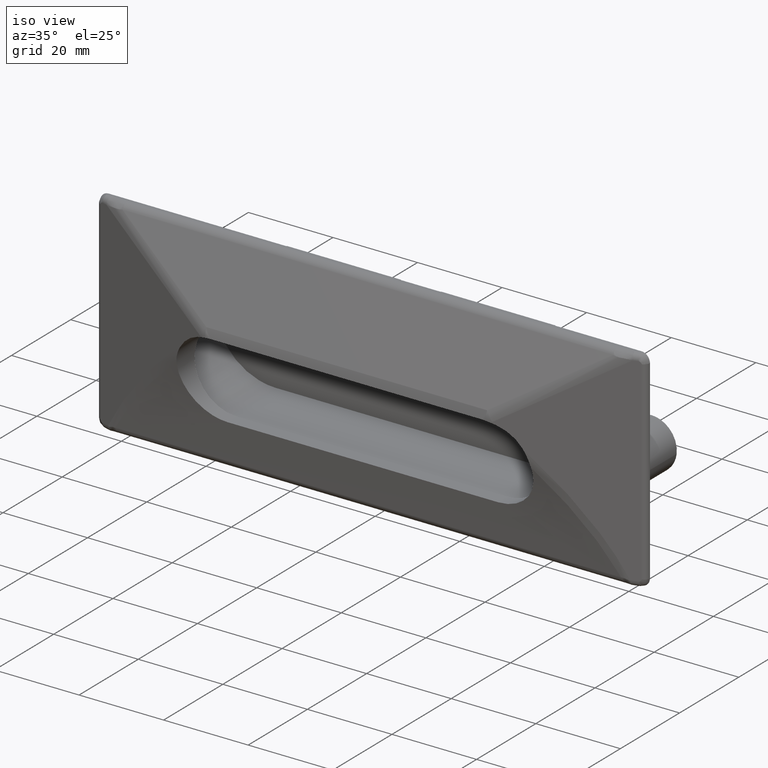
[diagram: clean part render]
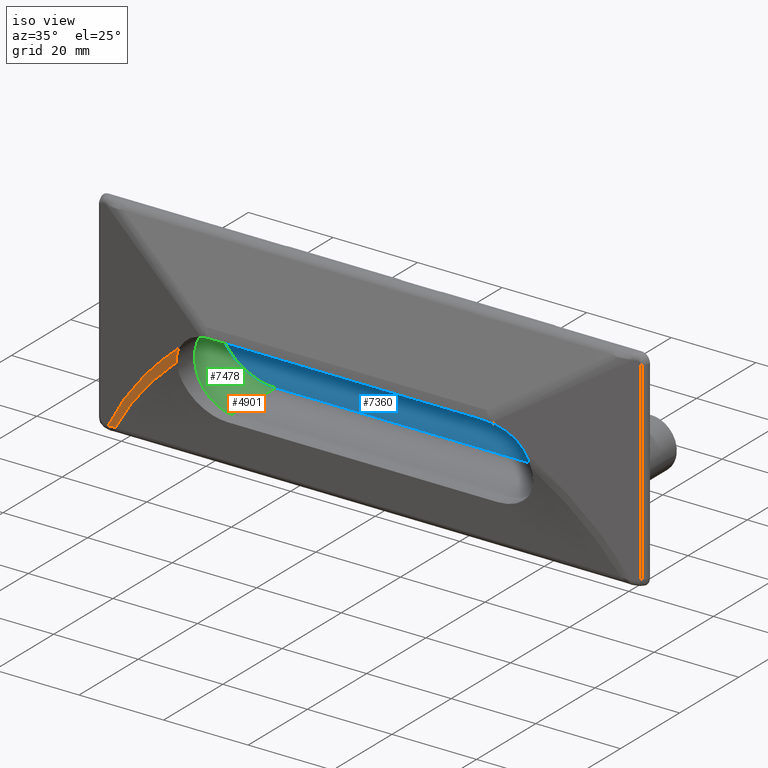
[diagram: same view with three faces highlighted in distinct colors, each labeled with its STEP entity id]
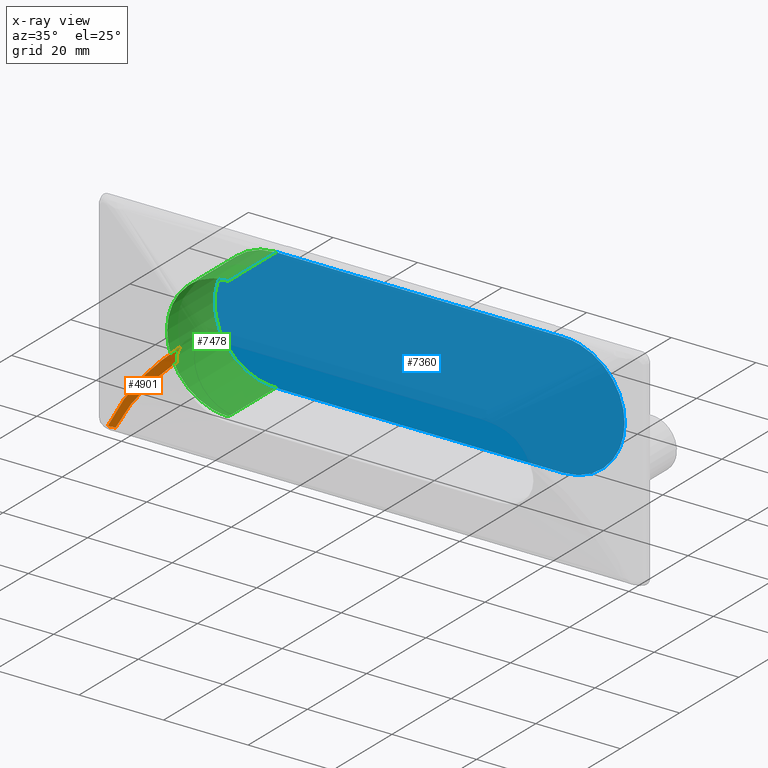
[diagram: x-ray of the same camera — body ghosted, the three highlighted faces saturated]
A machine part, iso view with three faces highlighted in distinct colors.
The next image is the same camera in x-ray (body ghosted, the three faces saturated) — at least one of them is partly hidden behind the body in this view.
Their STEP definitions:

[orange] entity #4901 — the highlighted face is a freeform B-spline surface patch.
#3220=CARTESIAN_POINT('',(-59.826816864289803,-2.289084316962840,-23.322330901554551));
#3221=VERTEX_POINT('',#3220);
#3416=CARTESIAN_POINT('',(-61.769868168316300,-1.998719706958750,-23.530000000000001));
#3417=VERTEX_POINT('',#3416);
#3438=CARTESIAN_POINT('',(-61.769868168316300,-1.998719706958750,-23.530000000000001));
#3439=CARTESIAN_POINT('',(-61.718757975092807,-2.012937044269142,-23.535302630516082));
#3440=CARTESIAN_POINT('',(-61.613958101637202,-2.042089255541094,-23.546175510700401));
#3441=CARTESIAN_POINT('',(-61.450014932367907,-2.082246731798925,-23.539020685059882));
#3442=CARTESIAN_POINT('',(-61.276856092758301,-2.121189629666683,-23.516227923397299));
#3443=CARTESIAN_POINT('',(-61.066198098491711,-2.164574809437463,-23.466664180087470));
#3444=CARTESIAN_POINT('',(-60.820951917610522,-2.209250591336320,-23.399123628755419));
#3445=CARTESIAN_POINT('',(-60.548684401233579,-2.249838400747414,-23.333405711314821));
#3446=CARTESIAN_POINT('',(-60.287798191404562,-2.276991110574052,-23.299381879268811));
#3447=CARTESIAN_POINT('',(-60.048221667083112,-2.291628638879913,-23.291066826942512));
#3448=CARTESIAN_POINT('',(-59.898202269864470,-2.289904658028993,-23.312250728866740));
#3449=CARTESIAN_POINT('',(-59.826816864289803,-2.289084316962840,-23.322330901554551));
#3450=B_SPLINE_CURVE_WITH_KNOTS('',3,(#3438,#3439,#3440,#3441,#3442,#3443,#3444,#3445,#3446,#3447,#3448,#3449),.UNSPECIFIED.,.F.,.U.,(4,1,1,1,1,1,1,1,1,4),(0.0,0.079987306555337,0.164011502917881,0.252997173485243,0.348441970183680,0.495160067581052,0.641045900495093,0.772857532062968,0.891916262180756,1.0),.UNSPECIFIED.);
#3451=EDGE_CURVE('',#3417,#3221,#3450,.T.);
#4237=CARTESIAN_POINT('',(-40.520212573979599,-8.094360877737209,1.235071890069398));
#4238=VERTEX_POINT('',#4237);
#4252=CARTESIAN_POINT('',(-41.915228808870708,-7.253295149322780,-2.700677996900895));
#4253=VERTEX_POINT('',#4252);
#4254=CARTESIAN_POINT('',(-40.520212573979599,-8.094360877737209,1.235071890069398));
#4255=CARTESIAN_POINT('',(-40.706821328560963,-8.040830598048485,0.931361398488212));
#4256=CARTESIAN_POINT('',(-40.875646558776459,-7.988417578944109,0.620251598958869));
#4257=CARTESIAN_POINT('',(-41.178454966164423,-7.878507941254281,-0.015054441012513));
#4258=CARTESIAN_POINT('',(-41.312432359407438,-7.821025657966956,-0.339255797877500));
#4259=CARTESIAN_POINT('',(-41.545535906177903,-7.692659183393874,-0.999135320315025));
#4260=CARTESIAN_POINT('',(-41.644658588428349,-7.621808111295467,-1.334821311399848));
#4261=CARTESIAN_POINT('',(-41.746408478737628,-7.518615109906680,-1.760539057901255));
#4262=CARTESIAN_POINT('',(-41.765669535014297,-7.497213156661059,-1.846086311731219));
#4263=CARTESIAN_POINT('',(-41.801840844566492,-7.452902580004689,-2.017183391887612));
#4264=CARTESIAN_POINT('',(-41.818752655835347,-7.429998337404986,-2.102724050174560));
#4265=CARTESIAN_POINT('',(-41.866010887388612,-7.358804139208066,-2.359247686283406));
#4266=CARTESIAN_POINT('',(-41.892880145820357,-7.308037151653635,-2.530133584361609));
#4267=CARTESIAN_POINT('',(-41.915228808870850,-7.253295149322790,-2.700677996900875));
#4268=B_SPLINE_CURVE_WITH_KNOTS('',3,(#4254,#4255,#4256,#4257,#4258,#4259,#4260,#4261,#4262,#4263,#4264,#4265,#4266,#4267),.UNSPECIFIED.,.F.,.U.,(4,2,2,2,2,2,4),(0.0,0.250000000000000,0.500000000000001,0.750000000000001,0.812500000000001,0.875000000000001,1.0),.UNSPECIFIED.);
#4269=EDGE_CURVE('',#4238,#4253,#4268,.T.);
#4709=CARTESIAN_POINT('',(-61.769868168316300,-1.998719706958750,-23.530000000000001));
#4710=CARTESIAN_POINT('',(-54.884599608161281,-3.973816494802024,-10.883425275904202));
#4711=CARTESIAN_POINT('',(-40.520212573979599,-8.094360877737209,1.235071890069398));
#4719=(BOUNDED_CURVE()B_SPLINE_CURVE(2,(#4709,#4710,#4711),.UNSPECIFIED.,.F.,.U.)CURVE()GEOMETRIC_REPRESENTATION_ITEM()QUASI_UNIFORM_CURVE()RATIONAL_B_SPLINE_CURVE((1.0,0.996268439901453,1.0))REPRESENTATION_ITEM(''));
#4720=EDGE_CURVE('',#3417,#4238,#4719,.T.);
#4836=CARTESIAN_POINT('',(-41.915228808870708,-7.253295149322780,-2.700677996900895));
#4837=CARTESIAN_POINT('',(-53.642613878611073,-4.003041078140895,-12.826589501252815));
#4838=CARTESIAN_POINT('',(-59.826816864289803,-2.289084316962840,-23.322330901554551));
#4846=(BOUNDED_CURVE()B_SPLINE_CURVE(2,(#4836,#4837,#4838),.UNSPECIFIED.,.F.,.U.)CURVE()GEOMETRIC_REPRESENTATION_ITEM()QUASI_UNIFORM_CURVE()RATIONAL_B_SPLINE_CURVE((1.0,0.997236430527085,1.0))REPRESENTATION_ITEM(''));
#4847=EDGE_CURVE('',#4253,#3221,#4846,.T.);
#4857=CARTESIAN_POINT('',(-39.076969796588024,-8.508367121473636,2.449440948032839));
#4858=CARTESIAN_POINT('',(-43.521842596907980,-7.233318237964970,-1.197594416896001));
#4859=CARTESIAN_POINT('',(-47.468111647582823,-6.101298004061690,-4.894508653799922));
#4860=CARTESIAN_POINT('',(-55.461578695482864,-3.808305225043410,-13.586944667400559));
#4861=CARTESIAN_POINT('',(-59.119989261562573,-2.758859601453342,-18.611872731800638));
#4862=CARTESIAN_POINT('',(-61.858693491247855,-1.973239421263786,-23.677482948884542));
#4863=CARTESIAN_POINT('',(-39.073791461559573,-8.509278853419934,2.445146736934200));
#4864=CARTESIAN_POINT('',(-43.518621598952599,-7.234242208128122,-1.201547925620186));
#4865=CARTESIAN_POINT('',(-47.464864717598502,-6.102229413043972,-4.898131088384236));
#4866=CARTESIAN_POINT('',(-55.458270068688428,-3.809254332270921,-13.589777164234619));
#4867=CARTESIAN_POINT('',(-59.116662379279802,-2.759813945421693,-18.614266878564493));
#4868=CARTESIAN_POINT('',(-61.855352948857195,-1.974197683746609,-23.679437936763133));
#4869=CARTESIAN_POINT('',(-38.424413255811601,-8.695558414920756,1.567779475976944));
#4870=CARTESIAN_POINT('',(-42.861968747431035,-7.422608562519336,-2.007535018198813));
#4871=CARTESIAN_POINT('',(-46.804205770618651,-6.291744949388296,-5.635194662147556));
#4872=CARTESIAN_POINT('',(-54.787679983792700,-4.001618698460628,-14.163865573239173));
#4873=CARTESIAN_POINT('',(-58.443567626329134,-2.952896796874585,-19.098650601092835));
#4874=CARTESIAN_POINT('',(-61.180389064072905,-2.167816710963990,-24.074447506752588));
#4875=CARTESIAN_POINT('',(-37.688257707429393,-8.422425879032771,0.786549394153974));
#4876=CARTESIAN_POINT('',(-42.133074237271359,-7.190752458739355,-2.736154594182652));
#4877=CARTESIAN_POINT('',(-46.079301727055096,-6.097240640866978,-6.307042809930788));
#4878=CARTESIAN_POINT('',(-54.072681203114321,-3.882252710121276,-14.703139013290730));
#4879=CARTESIAN_POINT('',(-57.731065329209628,-2.868505303381790,-19.556774800262438));
#4880=CARTESIAN_POINT('',(-60.469743158980215,-2.109611231922954,-24.449690005035283));
#4881=CARTESIAN_POINT('',(-37.684590352661942,-8.421065196620157,0.782657488603132));
#4882=CARTESIAN_POINT('',(-42.129435079959023,-7.189594868959597,-2.739792378828992));
#4883=CARTESIAN_POINT('',(-46.075675476499704,-6.096267655044840,-6.310403654363431));
#4884=CARTESIAN_POINT('',(-54.069090512909767,-3.881653259749230,-14.705847219110266));
#4885=CARTESIAN_POINT('',(-57.727480820706511,-2.868080740503554,-19.559079564884303));
#4886=CARTESIAN_POINT('',(-60.466163250468924,-2.109318019384432,-24.451580304836870));
#4894=(BOUNDED_SURFACE()B_SPLINE_SURFACE(3,2,((#4857,#4863,#4869,#4875,#4881),(#4858,#4864,#4870,#4876,#4882),(#4859,#4865,#4871,#4877,#4883),(#4860,#4866,#4872,#4878,#4884),(#4861,#4867,#4873,#4879,#4885),(#4862,#4868,#4874,#4880,#4886)),.UNSPECIFIED.,.F.,.F.,.U.)B_SPLINE_SURFACE_WITH_KNOTS((4,2,4),(3,1,1,3),(6.018323914718628,24.430930151726731,48.861860303453447),(0.0,0.010972196068909,2.188719764734568,2.199888804182880),.UNSPECIFIED.)GEOMETRIC_REPRESENTATION_ITEM()RATIONAL_B_SPLINE_SURFACE(((1.000236147212573,1.000118073606286,0.976564900280805,1.000120191811035,1.000240383680996),(1.000214748820006,1.000107374410003,0.978688463198041,1.000109300674410,1.000218601402406),(1.000195820266993,1.000097910133497,0.980566920803220,1.000099666611648,1.000199333272160),(1.000157559489074,1.000078779744537,0.984363896156431,1.000080193029303,1.000160386097921),(1.000140117586198,1.000070058793099,0.986094819544216,1.000071315626636,1.000142631288236),(1.000127077674989,1.000063538837495,0.987388892068576,1.000064678705003,1.000129357441715)))REPRESENTATION_ITEM('')SURFACE());
#4895=ORIENTED_EDGE('',*,*,#4720,.F.);
#4896=ORIENTED_EDGE('',*,*,#3451,.T.);
#4897=ORIENTED_EDGE('',*,*,#4847,.F.);
#4898=ORIENTED_EDGE('',*,*,#4269,.F.);
#4899=EDGE_LOOP('',(#4895,#4896,#4897,#4898));
#4900=FACE_OUTER_BOUND('',#4899,.T.);
#4901=ADVANCED_FACE('',(#4900),#4894,.T.);

[blue] entity #7360 — the highlighted face is a freeform B-spline surface patch.
#7305=CARTESIAN_POINT('',(-53.345149811994972,15.0,-15.948549943792379));
#7306=CARTESIAN_POINT('',(53.345152413737722,15.0,-15.948549943792379));
#7307=CARTESIAN_POINT('',(-53.345149811994972,15.0,15.948550721632991));
#7308=CARTESIAN_POINT('',(53.345152413737722,15.0,15.948550721632991));
#7309=B_SPLINE_SURFACE_WITH_KNOTS('',1,1,((#7305,#7307),(#7306,#7308)),.UNSPECIFIED.,.F.,.F.,.U.,(2,2),(2,2),(0.0,106.690302225732690),(0.0,31.897100665425370),.UNSPECIFIED.);
#7310=CARTESIAN_POINT('',(34.0,15.0,14.500000000000000));
#7311=VERTEX_POINT('',#7310);
#7312=CARTESIAN_POINT('',(-34.0,15.0,14.500000000000000));
#7313=VERTEX_POINT('',#7312);
#7314=CARTESIAN_POINT('',(34.0,15.0,14.500000000000000));
#7315=CARTESIAN_POINT('',(-34.0,15.0,14.500000000000000));
#7316=QUASI_UNIFORM_CURVE('',1,(#7314,#7315),.UNSPECIFIED.,.F.,.U.);
#7317=EDGE_CURVE('',#7311,#7313,#7316,.T.);
#7318=ORIENTED_EDGE('',*,*,#7317,.T.);
#7319=CARTESIAN_POINT('',(-34.0,15.0,-14.500000000000000));
#7320=VERTEX_POINT('',#7319);
#7321=CARTESIAN_POINT('',(-34.0,15.0,14.500000000000000));
#7322=CARTESIAN_POINT('',(-48.500000000000007,14.999999999999995,14.500000000000000));
#7323=CARTESIAN_POINT('',(-48.500000000000000,15.0,0.0));
#7324=CARTESIAN_POINT('',(-48.500000000000007,14.999999999999995,-14.500000000000000));
#7325=CARTESIAN_POINT('',(-34.0,15.0,-14.500000000000000));
#7333=(BOUNDED_CURVE()B_SPLINE_CURVE(2,(#7321,#7322,#7323,#7324,#7325),.UNSPECIFIED.,.F.,.U.)B_SPLINE_CURVE_WITH_KNOTS((3,2,3),(0.0,0.500000000000000,1.0),.UNSPECIFIED.)CURVE()GEOMETRIC_REPRESENTATION_ITEM()RATIONAL_B_SPLINE_CURVE((1.0,0.707106781186548,1.0,0.707106781186548,1.0))REPRESENTATION_ITEM(''));
#7334=EDGE_CURVE('',#7313,#7320,#7333,.T.);
#7335=ORIENTED_EDGE('',*,*,#7334,.T.);
#7336=CARTESIAN_POINT('',(34.0,15.0,-14.500000000000000));
#7337=VERTEX_POINT('',#7336);
#7338=CARTESIAN_POINT('',(-34.0,15.0,-14.500000000000000));
#7339=CARTESIAN_POINT('',(34.0,15.0,-14.500000000000000));
#7340=QUASI_UNIFORM_CURVE('',1,(#7338,#7339),.UNSPECIFIED.,.F.,.U.);
#7341=EDGE_CURVE('',#7320,#7337,#7340,.T.);
#7342=ORIENTED_EDGE('',*,*,#7341,.T.);
#7343=CARTESIAN_POINT('',(34.0,15.0,-14.500000000000000));
#7344=CARTESIAN_POINT('',(48.500000000000007,14.999999999999995,-14.500000000000000));
#7345=CARTESIAN_POINT('',(48.500000000000000,15.0,0.0));
#7346=CARTESIAN_POINT('',(48.500000000000007,14.999999999999995,14.500000000000000));
#7347=CARTESIAN_POINT('',(34.0,15.0,14.500000000000000));
#7355=(BOUNDED_CURVE()B_SPLINE_CURVE(2,(#7343,#7344,#7345,#7346,#7347),.UNSPECIFIED.,.F.,.U.)B_SPLINE_CURVE_WITH_KNOTS((3,2,3),(0.0,0.500000000000000,1.0),.UNSPECIFIED.)CURVE()GEOMETRIC_REPRESENTATION_ITEM()RATIONAL_B_SPLINE_CURVE((1.0,0.707106781186548,1.0,0.707106781186548,1.0))REPRESENTATION_ITEM(''));
#7356=EDGE_CURVE('',#7337,#7311,#7355,.T.);
#7357=ORIENTED_EDGE('',*,*,#7356,.T.);
#7358=EDGE_LOOP('',(#7318,#7335,#7342,#7357));
#7359=FACE_OUTER_BOUND('',#7358,.T.);
#7360=ADVANCED_FACE('',(#7359),#7309,.T.);

[green] entity #7478 — the highlighted face is a freeform B-spline surface patch.
#7312=CARTESIAN_POINT('',(-34.0,15.0,14.500000000000000));
#7313=VERTEX_POINT('',#7312);
#7319=CARTESIAN_POINT('',(-34.0,15.0,-14.500000000000000));
#7320=VERTEX_POINT('',#7319);
#7321=CARTESIAN_POINT('',(-34.0,15.0,14.500000000000000));
#7322=CARTESIAN_POINT('',(-48.500000000000007,14.999999999999995,14.500000000000000));
#7323=CARTESIAN_POINT('',(-48.500000000000000,15.0,0.0));
#7324=CARTESIAN_POINT('',(-48.500000000000007,14.999999999999995,-14.500000000000000));
#7325=CARTESIAN_POINT('',(-34.0,15.0,-14.500000000000000));
#7333=(BOUNDED_CURVE()B_SPLINE_CURVE(2,(#7321,#7322,#7323,#7324,#7325),.UNSPECIFIED.,.F.,.U.)B_SPLINE_CURVE_WITH_KNOTS((3,2,3),(0.0,0.500000000000000,1.0),.UNSPECIFIED.)CURVE()GEOMETRIC_REPRESENTATION_ITEM()RATIONAL_B_SPLINE_CURVE((1.0,0.707106781186548,1.0,0.707106781186548,1.0))REPRESENTATION_ITEM(''));
#7334=EDGE_CURVE('',#7313,#7320,#7333,.T.);
#7417=CARTESIAN_POINT('',(-34.0,-0.999999999999890,-14.500000000000000));
#7418=VERTEX_POINT('',#7417);
#7426=CARTESIAN_POINT('',(-34.0,15.0,-14.500000000000000));
#7427=CARTESIAN_POINT('',(-34.0,-0.999999999999890,-14.500000000000000));
#7428=QUASI_UNIFORM_CURVE('',1,(#7426,#7427),.UNSPECIFIED.,.F.,.U.);
#7429=EDGE_CURVE('',#7320,#7418,#7428,.T.);
#7434=CARTESIAN_POINT('',(-33.620434249535819,15.400000000000000,-14.495031212145580));
#7435=CARTESIAN_POINT('',(-33.620434249535819,-1.409999999999890,-14.495031212145580));
#7436=CARTESIAN_POINT('',(-48.895010056222048,15.399999999999997,-14.895010056222082));
#7437=CARTESIAN_POINT('',(-48.895010056222048,-1.409999999999890,-14.895010056222082));
#7438=CARTESIAN_POINT('',(-48.495031212145577,15.400000000000000,0.379565750464138));
#7439=CARTESIAN_POINT('',(-48.495031212145577,-1.409999999999890,0.379565750464138));
#7440=CARTESIAN_POINT('',(-48.095052368069119,15.399999999999997,15.654141557150364));
#7441=CARTESIAN_POINT('',(-48.095052368069119,-1.409999999999890,15.654141557150364));
#7442=CARTESIAN_POINT('',(-32.862343111946267,15.400000000000000,14.455301339130370));
#7443=CARTESIAN_POINT('',(-32.862343111946267,-1.409999999999890,14.455301339130370));
#7451=(BOUNDED_SURFACE()B_SPLINE_SURFACE(1,2,((#7434,#7436,#7438,#7440,#7442),(#7435,#7437,#7439,#7441,#7443)),.UNSPECIFIED.,.F.,.F.,.U.)B_SPLINE_SURFACE_WITH_KNOTS((2,2),(3,2,3),(0.0,16.809999999999889),(0.0,24.918766546076501,49.837533092153002),.UNSPECIFIED.)GEOMETRIC_REPRESENTATION_ITEM()RATIONAL_B_SPLINE_SURFACE(((1.0,0.688354575693754,1.0,0.688354575693754,1.0),(1.0,0.688354575693754,1.0,0.688354575693754,1.0)))REPRESENTATION_ITEM('')SURFACE());
#7452=CARTESIAN_POINT('',(-34.0,-0.999999999999890,14.500000000000000));
#7453=VERTEX_POINT('',#7452);
#7454=CARTESIAN_POINT('',(-34.0,-0.999999999999890,14.500000000000000));
#7455=CARTESIAN_POINT('',(-48.500000000000007,-0.999999999999890,14.500000000000000));
#7456=CARTESIAN_POINT('',(-48.500000000000000,-0.999999999999890,0.0));
#7457=CARTESIAN_POINT('',(-48.500000000000007,-0.999999999999890,-14.500000000000000));
#7458=CARTESIAN_POINT('',(-34.0,-0.999999999999890,-14.500000000000000));
#7466=(BOUNDED_CURVE()B_SPLINE_CURVE(2,(#7454,#7455,#7456,#7457,#7458),.UNSPECIFIED.,.F.,.U.)B_SPLINE_CURVE_WITH_KNOTS((3,2,3),(0.0,0.500000000000000,1.0),.UNSPECIFIED.)CURVE()GEOMETRIC_REPRESENTATION_ITEM()RATIONAL_B_SPLINE_CURVE((1.0,0.707106781186548,1.0,0.707106781186548,1.0))REPRESENTATION_ITEM(''));
#7467=EDGE_CURVE('',#7453,#7418,#7466,.T.);
#7468=ORIENTED_EDGE('',*,*,#7467,.T.);
#7469=ORIENTED_EDGE('',*,*,#7429,.F.);
#7470=ORIENTED_EDGE('',*,*,#7334,.F.);
#7471=CARTESIAN_POINT('',(-34.0,15.0,14.500000000000000));
#7472=CARTESIAN_POINT('',(-34.0,-0.999999999999890,14.500000000000000));
#7473=QUASI_UNIFORM_CURVE('',1,(#7471,#7472),.UNSPECIFIED.,.F.,.U.);
#7474=EDGE_CURVE('',#7313,#7453,#7473,.T.);
#7475=ORIENTED_EDGE('',*,*,#7474,.T.);
#7476=EDGE_LOOP('',(#7468,#7469,#7470,#7475));
#7477=FACE_OUTER_BOUND('',#7476,.T.);
#7478=ADVANCED_FACE('',(#7477),#7451,.F.);